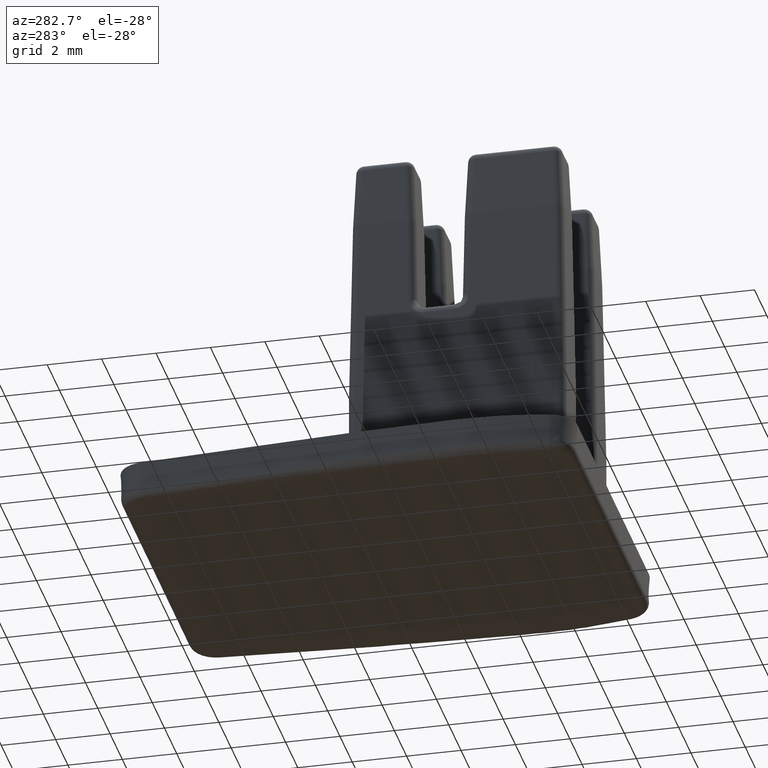
[diagram: clean part render]
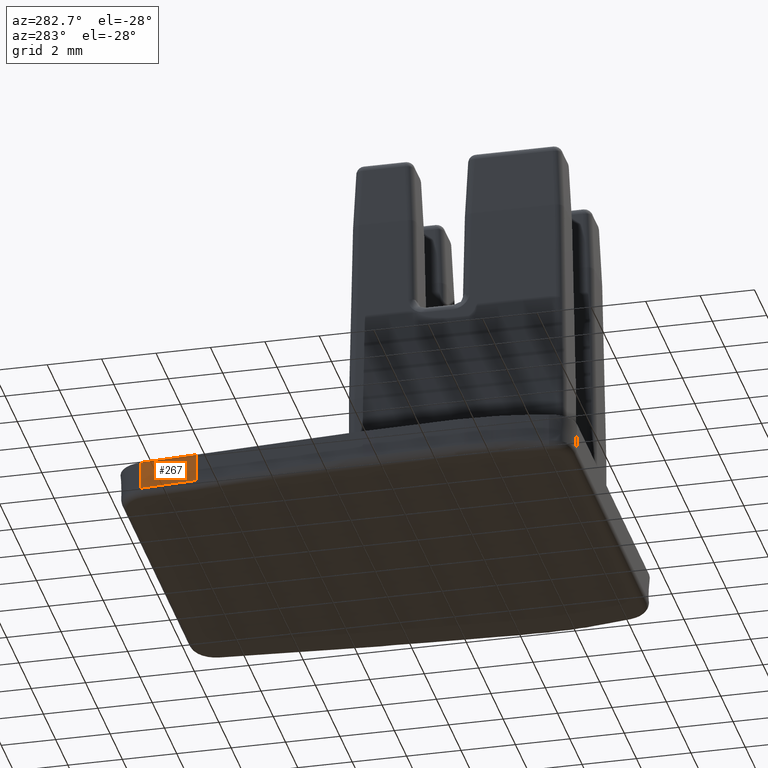
[diagram: same view with one face highlighted and labeled with its STEP entity id]
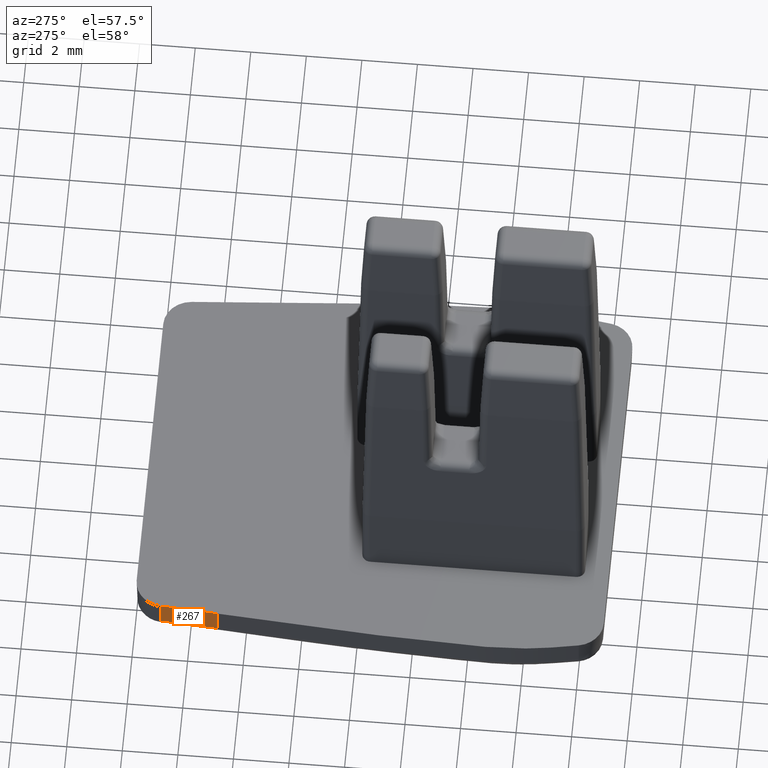
[diagram: same view with one face highlighted and labeled with its STEP entity id]
A machine part, auxiliary view. The second image highlights one B-rep face of the part: STEP entity #267.
A second angle (auxiliary view) of the same face is appended — the face is thin or edge-on in the first view.
In plain terms, the highlighted planar face has unit normal (-0.9972, 0.0699, -0.0262).
Its self-contained STEP definition (entity closure, byte-faithful):
#40 = EDGE_CURVE ( 'NONE', #3347, #3353, #3837, .T. ) ;
#267 = ADVANCED_FACE ( 'NONE', ( #4631 ), #4630, .T. ) ;
#468 = EDGE_CURVE ( 'NONE', #3337, #3394, #541, .T. ) ;
#498 = EDGE_CURVE ( 'NONE', #3353, #3394, #1045, .T. ) ;
#524 = EDGE_CURVE ( 'NONE', #3347, #3337, #1129, .T. ) ;
#541 = B_SPLINE_CURVE_WITH_KNOTS ( 'NONE', 3,
 ( #845, #831, #848, #809 ),
 .UNSPECIFIED., .F., .F.,
 ( 4, 4 ),
 ( 0.02249693639907614900, 0.02352464165818180000 ),
 .UNSPECIFIED. ) ;
#657 = VECTOR ( 'NONE', #3888, 1000.000000000000100 ) ;
#809 = CARTESIAN_POINT ( 'NONE',  ( -244.9797135297904700, -6.991482578573370100, -36.24964550397354700 ) ) ;
#831 = CARTESIAN_POINT ( 'NONE',  ( -244.9618277325579600, -6.992809307257294500, -36.93454756029735400 ) ) ;
#845 = CARTESIAN_POINT ( 'NONE',  ( -244.9528848339390100, -6.993472671560550000, -37.27699858845919300 ) ) ;
#848 = CARTESIAN_POINT ( 'NONE',  ( -244.9707706311734800, -6.992145942903381900, -36.59209653213545000 ) ) ;
#1030 = CARTESIAN_POINT ( 'NONE',  ( -244.8343890226890100, -4.919396714687169800, -36.24964550397354700 ) ) ;
#1045 = LINE ( 'NONE', #1030, #5051 ) ;
#1054 = DIRECTION ( 'NONE',  ( -0.06996254797231030200, -0.9975496187564917300, 0.0000000000000000000 ) ) ;
#1129 = LINE ( 'NONE', #1167, #5115 ) ;
#1167 = CARTESIAN_POINT ( 'NONE',  ( -244.9528869868445000, -6.993503368409349700, -37.27699858845919300 ) ) ;
#1173 = CARTESIAN_POINT ( 'NONE',  ( -244.8343890226890100, -4.919396714687169800, -36.24964550397354700 ) ) ;
#1181 = CARTESIAN_POINT ( 'NONE',  ( -244.8075527560100100, -4.921278860256309800, -37.27699858845899400 ) ) ;
#1193 = DIRECTION ( 'NONE',  ( -0.06996254797230741500, -0.9975496187564920600, -1.107507876480832200E-013 ) ) ;
#1206 = CARTESIAN_POINT ( 'NONE',  ( -244.9528848339390100, -6.993472671560550000, -37.27699858845919300 ) ) ;
#1227 = CARTESIAN_POINT ( 'NONE',  ( -244.9797135297904700, -6.991482578573370100, -36.24964550397354700 ) ) ;
#2644 = ORIENTED_EDGE ( 'NONE', *, *, #498, .F. ) ;
#2651 = ORIENTED_EDGE ( 'NONE', *, *, #40, .F. ) ;
#2706 = ORIENTED_EDGE ( 'NONE', *, *, #468, .T. ) ;
#2708 = ORIENTED_EDGE ( 'NONE', *, *, #524, .T. ) ;
#3337 = VERTEX_POINT ( 'NONE', #1206 ) ;
#3347 = VERTEX_POINT ( 'NONE', #1181 ) ;
#3353 = VERTEX_POINT ( 'NONE', #1173 ) ;
#3394 = VERTEX_POINT ( 'NONE', #1227 ) ;
#3517 = EDGE_LOOP ( 'NONE', ( #2651, #2708, #2706, #2644 ) ) ;
#3837 = LINE ( 'NONE', #3852, #657 ) ;
#3852 = CARTESIAN_POINT ( 'NONE',  ( -244.8343890226890100, -4.919396714687169800, -36.24964550397354700 ) ) ;
#3888 = DIRECTION ( 'NONE',  ( -0.02611280480472715600, 0.001831406001760725700, 0.9996573249755572600 ) ) ;
#4608 = DIRECTION ( 'NONE',  ( -0.9972077834165016300, 0.06993857355447383200, -0.02617694830787318400 ) ) ;
#4615 = CARTESIAN_POINT ( 'NONE',  ( -244.8343890226890100, -4.919396714687169800, -36.24964550397354700 ) ) ;
#4619 = DIRECTION ( 'NONE',  ( -0.06996254797231030200, -0.9975496187564917300, 0.0000000000000000000 ) ) ;
#4630 = PLANE ( 'NONE',  #4861 ) ;
#4631 = FACE_OUTER_BOUND ( 'NONE', #3517, .T. ) ;
#4861 = AXIS2_PLACEMENT_3D ( 'NONE', #4615, #4608, #4619 ) ;
#5051 = VECTOR ( 'NONE', #1054, 1000.000000000000100 ) ;
#5115 = VECTOR ( 'NONE', #1193, 1000.000000000000100 ) ;